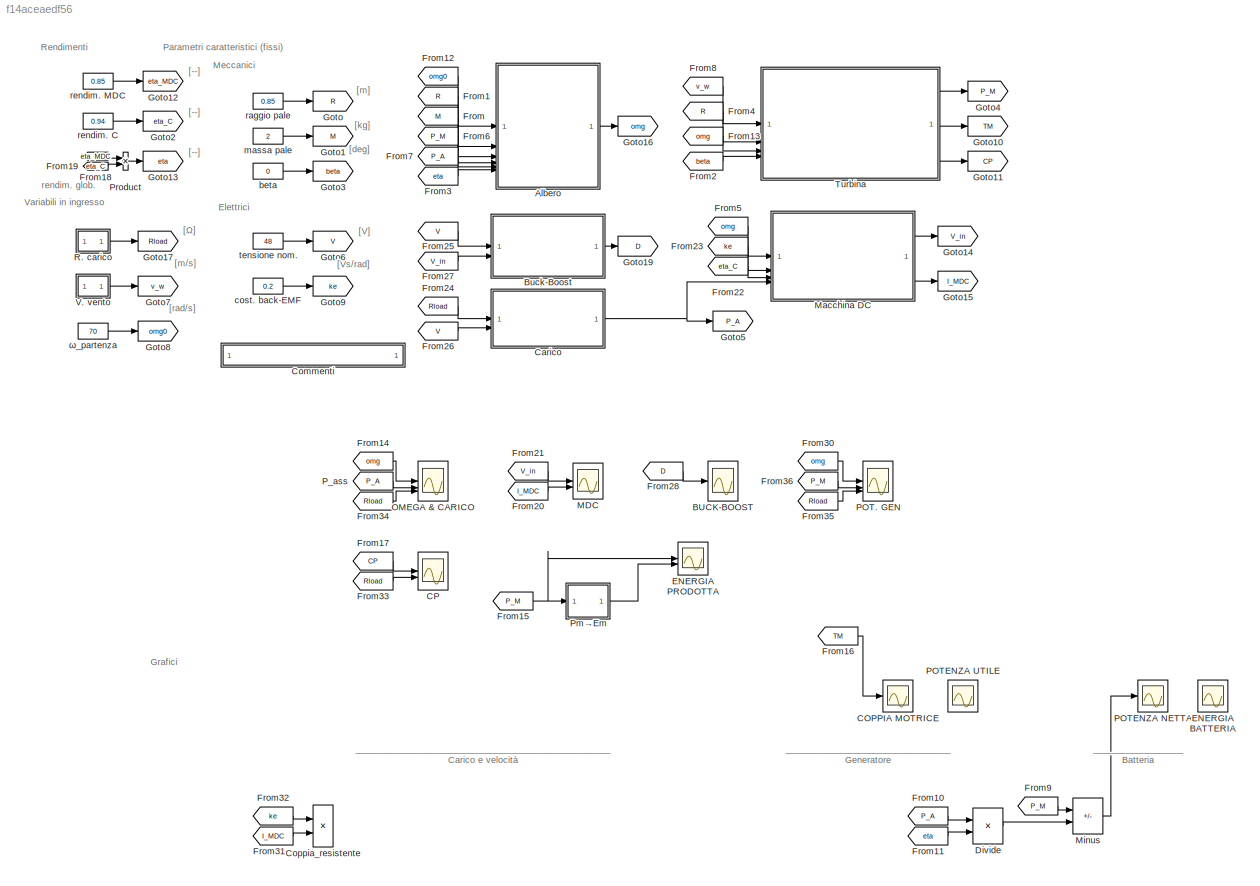
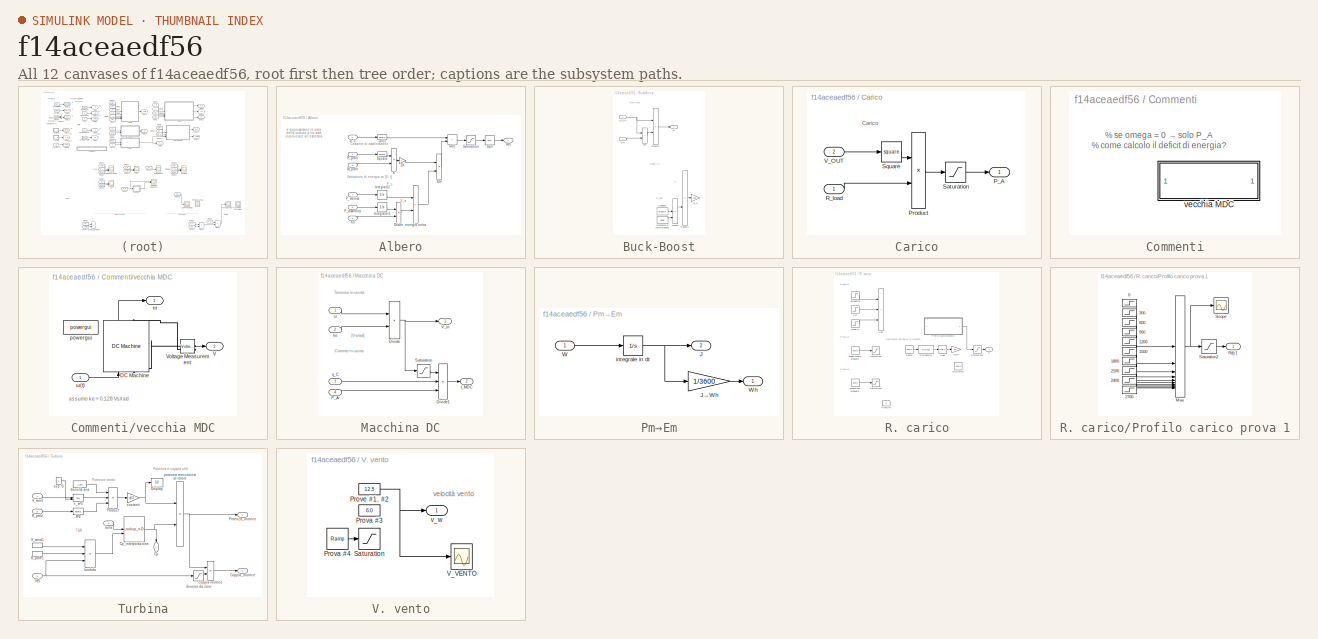
[diagram: thumbnail index - all 12 canvases of the model, root first then tree order]
MODEL slx_f14aceaedf56
KIND model
CONFIG AbsTol = auto
CONFIG EnableMultiTasking = off
CONFIG FixedStep = auto
CONFIG MaxStep = auto
CONFIG MinStep = auto
CONFIG RelTol = 1e-3
CONFIG SampleTimeConstraint = Unconstrained
CONFIG SolverName = VariableStepAuto
CONFIG StartTime = 0.0
CONFIG StopTime = 3000
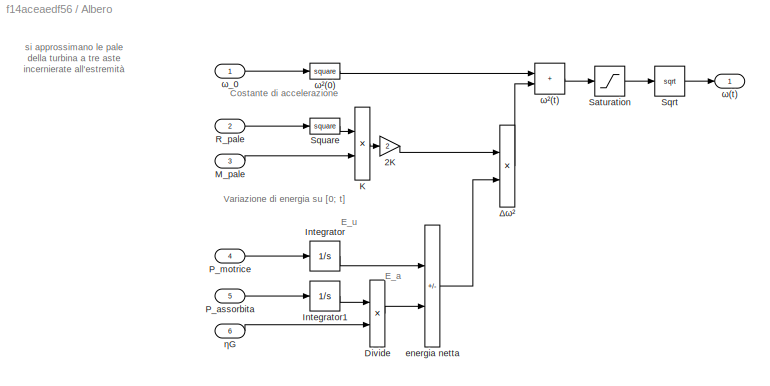
BLOCK [SubSystem] Albero
  NameLocation = top
BLOCK [Gain] Albero/2K
  Gain = 2
BLOCK [Product] Albero/Divide
  Inputs = */
BLOCK [Integrator] Albero/Integrator
BLOCK [Integrator] Albero/Integrator1
BLOCK [Product] Albero/K
  Inputs = //
  NameLocation = left
BLOCK [Inport] Albero/M_pale
  Port = 3
  Unit = kg
BLOCK [Inport] Albero/P_assorbita
  Port = 5
  Unit = W
BLOCK [Inport] Albero/P_motrice
  Port = 4
  Unit = W
BLOCK [Inport] Albero/R_pale
  Port = 2
  Unit = m
BLOCK [Saturate] Albero/Saturation
  LowerLimit = 0
  UpperLimit = 10e6
BLOCK [Sqrt] Albero/Sqrt
BLOCK [Math] Albero/Square
  Operator = square
BLOCK [Sum] Albero/energia netta
  IconShape = rectangular
  Inputs = +-
BLOCK [Product] Albero/Δω²
BLOCK [Inport] Albero/ηG
  Port = 6
  Unit = 1
BLOCK [Outport] Albero/ω(t)
  Unit = rad/s
BLOCK [Inport] Albero/ω_0
  Unit = rad/s
BLOCK [Math] Albero/ω²(0)
  NameLocation = top
  Operator = square
BLOCK [Sum] Albero/ω²(t)
  IconShape = rectangular
BLOCK [Scope] BUCK-BOOST
  Floating = off
  NumInputPorts = 2
  ScopeSpecificationString = Simulink.scopes.TimeScopeBlockCfg('CurrentConfiguration', extmgr.ConfigurationSet(extmgr.Configuration('Core','General UI',true,'FigureColor',[1 1 1]),extmgr.Configuration('Core','Source UI',true),extmgr.Configuration('Sources','WiredSimulink',true,'DataLoggingVariableName','ScopeData1'),extmgr.Configuration('Visuals','Time Domain',true,'SerializedDisplays',{struct('MinYLimReal','-0.05','MaxYLimRe...<+3370ch>
BLOCK [SubSystem] Buck-Boost
  NameLocation = top
BLOCK [Sum] Buck-Boost/Add
  IconShape = rectangular
BLOCK [Constant] Buck-Boost/Capacità
  NameLocation = left
  Value = 8*10e-6
BLOCK [Outport] Buck-Boost/D
  NameLocation = right
  Unit = 1
BLOCK [Constant] Buck-Boost/Frequenza di commutazione
  NameLocation = left
  Value = 10e5
BLOCK [Product] Buck-Boost/Product
  Commented = on
  Inputs = 3
BLOCK [Product] Buck-Boost/Product1
  Commented = on
  Inputs = */
BLOCK [Product] Buck-Boost/Product2
  Inputs = */
BLOCK [Inport] Buck-Boost/V_IN
  NameLocation = left
  Port = 2
  Unit = V
BLOCK [Inport] Buck-Boost/V_OUT
  NameLocation = left
  Unit = V
BLOCK [Gain] Buck-Boost/in_%
  Commented = on
  Gain = 100
BLOCK [Scope] COPPIA MOTRICE
  Floating = off
  NumInputPorts = 1
  ScopeSpecificationString = Simulink.scopes.TimeScopeBlockCfg('CurrentConfiguration', extmgr.ConfigurationSet(extmgr.Configuration('Core','General UI',true,'FigureColor',[1 1 1]),extmgr.Configuration('Core','Source UI',true),extmgr.Configuration('Sources','WiredSimulink',true,'DataLoggingVariableName','ScopeData3'),extmgr.Configuration('Visuals','Time Domain',true,'SerializedDisplays',{struct('MinYLimReal','-1.22036','MaxYLi...<+1816ch>
BLOCK [Scope] CP
  Floating = off
  NumInputPorts = 2
  ScopeSpecificationString = Simulink.scopes.TimeScopeBlockCfg('CurrentConfiguration', extmgr.ConfigurationSet(extmgr.Configuration('Core','General UI',true,'FigureColor',[1 1 1]),extmgr.Configuration('Core','Source UI',true),extmgr.Configuration('Sources','WiredSimulink',true,'DataLoggingVariableName','ScopeData1'),extmgr.Configuration('Visuals','Time Domain',true,'SerializedDisplays',{struct('MinYLimReal','-0.05','MaxYLimRe...<+2373ch>
BLOCK [SubSystem] Carico
BLOCK [Outport] Carico/P_A
  NameLocation = right
  Unit = W
BLOCK [Product] Carico/Product
  Inputs = */
BLOCK [Inport] Carico/R_load
  NameLocation = left
  Unit = Ω
BLOCK [Saturate] Carico/Saturation
  LowerLimit = 0.1
  UpperLimit = 10e6
BLOCK [Math] Carico/Square
  Operator = square
BLOCK [Inport] Carico/V_OUT
  NameLocation = left
  Port = 2
  Unit = V
BLOCK [SubSystem] Commenti
  NameLocation = top
BLOCK [SubSystem] Commenti/vecchia MDC
  Commented = on
BLOCK [Reference] Commenti/vecchia MDC/DC Machine  REF=spsDCMachineLib/DC Machine
  LibrarySourceBlock = sps_lib/Electrical Machines/DC Machine
  NameLocation = left
  SourceBlock = spsDCMachineLib/DC Machine
  SourceType = DC machine
BLOCK [Outport] Commenti/vecchia MDC/V
  Port = 2
  Unit = V
BLOCK [Reference] Commenti/vecchia MDC/Voltage Measurement  REF=spsVoltageMeasurementLib/Voltage Measurement
  LibrarySourceBlock = sps_lib/Sensors and Measurements/Voltage Measurement
  SourceBlock = spsVoltageMeasurementLib/Voltage Measurement
  SourceType = Voltage Measurement
  UserDataPersistent = on
BLOCK [Outport] Commenti/vecchia MDC/m
BLOCK [Reference] Commenti/vecchia MDC/powergui  REF=sps_lib/powergui
  LibrarySourceBlock = sps_lib/powergui
  Priority = 1
  SourceBlock = sps_lib/powergui
  SourceType = PSB option menu block
BLOCK [Inport] Commenti/vecchia MDC/ω(t)
BLOCK [Product] Coppia_resistente
BLOCK [Product] Divide
  Inputs = */
BLOCK [Scope] ENERGIA BATTERIA
  Floating = off
  NumInputPorts = 1
  ScopeSpecificationString = Simulink.scopes.TimeScopeBlockCfg('CurrentConfiguration', extmgr.ConfigurationSet(extmgr.Configuration('Core','General UI',true,'FigureColor',[1 1 1]),extmgr.Configuration('Core','Source UI',true),extmgr.Configuration('Sources','WiredSimulink',true,'DataLoggingVariableName','ScopeData2'),extmgr.Configuration('Visuals','Time Domain',true,'SerializedDisplays',{struct('MinYLimReal','-6.66941','MaxYLi...<+1824ch>
BLOCK [Scope] ENERGIA PRODOTTA
  Floating = off
  NumInputPorts = 2
  ScopeSpecificationString = Simulink.scopes.TimeScopeBlockCfg('CurrentConfiguration', extmgr.ConfigurationSet(extmgr.Configuration('Core','General UI',true,'FigureColor',[1 1 1]),extmgr.Configuration('Core','Source UI',true),extmgr.Configuration('Sources','WiredSimulink',true,'DataLoggingVariableName','ScopeData4'),extmgr.Configuration('Visuals','Time Domain',true,'SerializedDisplays',{struct('MinYLimReal','-50','MaxYLimReal...<+1907ch>
BLOCK [From] From
  GotoTag = M
BLOCK [From] From1
  GotoTag = R
BLOCK [From] From10
  GotoTag = P_A
BLOCK [From] From11
  GotoTag = eta
BLOCK [From] From12
  GotoTag = omg0
BLOCK [From] From13
  GotoTag = omg
BLOCK [From] From14
  GotoTag = omg
  NameLocation = left
BLOCK [From] From15
  GotoTag = P_M
BLOCK [From] From16
  GotoTag = TM
BLOCK [From] From17
  GotoTag = CP
BLOCK [From] From18
  GotoTag = eta_MDC
BLOCK [From] From19
  GotoTag = eta_C
BLOCK [From] From2
  GotoTag = beta
BLOCK [From] From20
  GotoTag = I_MDC
  NameLocation = left
BLOCK [From] From21
  GotoTag = V_in
BLOCK [From] From22
  GotoTag = eta_C
BLOCK [From] From23
  GotoTag = ke
BLOCK [From] From24
  GotoTag = Rload
BLOCK [From] From25
  GotoTag = V
BLOCK [From] From26
  GotoTag = V
BLOCK [From] From27
  GotoTag = V_in
BLOCK [From] From28
  GotoTag = D
BLOCK [From] From3
  GotoTag = eta
BLOCK [From] From30
  GotoTag = omg
  NameLocation = left
BLOCK [From] From31
  GotoTag = I_MDC
BLOCK [From] From32
  GotoTag = ke
BLOCK [From] From33
  GotoTag = Rload
BLOCK [From] From34
  GotoTag = Rload
BLOCK [From] From35
  GotoTag = Rload
BLOCK [From] From36
  GotoTag = P_M
BLOCK [From] From4
  GotoTag = R
BLOCK [From] From5
  GotoTag = omg
BLOCK [From] From6
  GotoTag = P_M
BLOCK [From] From7
  GotoTag = P_A
BLOCK [From] From8
  GotoTag = v_w
BLOCK [From] From9
  GotoTag = P_M
BLOCK [Goto] Goto
  GotoTag = R
BLOCK [Goto] Goto1
  GotoTag = M
BLOCK [Goto] Goto10
  GotoTag = TM
BLOCK [Goto] Goto11
  GotoTag = CP
BLOCK [Goto] Goto12
  GotoTag = eta_MDC
BLOCK [Goto] Goto13
  GotoTag = eta
BLOCK [Goto] Goto14
  GotoTag = V_in
BLOCK [Goto] Goto15
  GotoTag = I_MDC
BLOCK [Goto] Goto16
  GotoTag = omg
BLOCK [Goto] Goto17
  GotoTag = Rload
BLOCK [Goto] Goto19
  GotoTag = D
BLOCK [Goto] Goto2
  GotoTag = eta_C
BLOCK [Goto] Goto3
  GotoTag = beta
BLOCK [Goto] Goto4
  GotoTag = P_M
BLOCK [Goto] Goto5
  GotoTag = P_A
BLOCK [Goto] Goto6
  GotoTag = V
BLOCK [Goto] Goto7
  GotoTag = v_w
BLOCK [Goto] Goto8
  GotoTag = omg0
BLOCK [Goto] Goto9
  GotoTag = ke
BLOCK [Scope] MDC
  Floating = off
  NumInputPorts = 2
  ScopeSpecificationString = Simulink.scopes.TimeScopeBlockCfg('CurrentConfiguration', extmgr.ConfigurationSet(extmgr.Configuration('Core','General UI',true,'FigureColor',[1 1 1]),extmgr.Configuration('Core','Source UI',true),extmgr.Configuration('Sources','WiredSimulink',true,'DataLoggingVariableName','ScopeData1'),extmgr.Configuration('Visuals','Time Domain',true,'SerializedDisplays',{struct('MinYLimReal','-5','MaxYLimReal'...<+2292ch>
BLOCK [SubSystem] Macchina DC
  NameLocation = top
BLOCK [Product] Macchina DC/Divide
BLOCK [Product] Macchina DC/Divide1
  Inputs = //*
BLOCK [Outport] Macchina DC/I_MDC
  NameLocation = right
  Port = 2
  Unit = A
BLOCK [Inport] Macchina DC/P_A
  NameLocation = left
  Port = 4
  Unit = W
BLOCK [Saturate] Macchina DC/Saturation
  LowerLimit = 1
  UpperLimit = 1000
BLOCK [Outport] Macchina DC/V_in
  NameLocation = right
  Unit = V
BLOCK [Inport] Macchina DC/ke
  NameLocation = left
  Port = 2
  Unit = W
BLOCK [Inport] Macchina DC/η_C
  NameLocation = left
  Port = 3
BLOCK [Inport] Macchina DC/ω
  NameLocation = left
  Unit = rad/s
BLOCK [Sum] Minus
  IconShape = rectangular
  Inputs = +-
BLOCK [Scope] OMEGA & CARICO
  Floating = off
  NumInputPorts = 3
  ScopeSpecificationString = Simulink.scopes.TimeScopeBlockCfg('CurrentConfiguration', extmgr.ConfigurationSet(extmgr.Configuration('Core','General UI',true,'FigureColor',[1 1 1]),extmgr.Configuration('Core','Source UI',true),extmgr.Configuration('Sources','WiredSimulink',true,'DataLoggingVariableName','ScopeData1'),extmgr.Configuration('Visuals','Time Domain',true,'TimeAxisLabels','All','SerializedDisplays',{struct('MinYLimR...<+3260ch>
BLOCK [Scope] POT. GEN
  Floating = off
  NumInputPorts = 3
  ScopeSpecificationString = Simulink.scopes.TimeScopeBlockCfg('CurrentConfiguration', extmgr.ConfigurationSet(extmgr.Configuration('Core','General UI',true,'FigureColor',[1 1 1]),extmgr.Configuration('Core','Source UI',true),extmgr.Configuration('Sources','WiredSimulink',true,'DataLoggingVariableName','ScopeData1'),extmgr.Configuration('Visuals','Time Domain',true,'SerializedDisplays',{struct('MinYLimReal','-35.69102','MaxYL...<+3188ch>
BLOCK [Scope] POTENZA NETTA
  Floating = off
  NumInputPorts = 1
  ScopeSpecificationString = Simulink.scopes.TimeScopeBlockCfg('CurrentConfiguration', extmgr.ConfigurationSet(extmgr.Configuration('Core','General UI',true,'FigureColor',[1 1 1]),extmgr.Configuration('Core','Source UI',true),extmgr.Configuration('Sources','WiredSimulink',true,'DataLoggingVariableName','ScopeData1'),extmgr.Configuration('Visuals','Time Domain',true,'SerializedDisplays',{struct('MinYLimReal','-251.2003','MaxYL...<+1878ch>
BLOCK [Scope] POTENZA UTILE
  Floating = off
  NumInputPorts = 1
  ScopeSpecificationString = Simulink.scopes.TimeScopeBlockCfg('CurrentConfiguration', extmgr.ConfigurationSet(extmgr.Configuration('Core','General UI',true,'FigureColor',[1 1 1]),extmgr.Configuration('Core','Source UI',true),extmgr.Configuration('Sources','WiredSimulink',true,'DataLoggingVariableName','ScopeData2'),extmgr.Configuration('Visuals','Time Domain',true,'SerializedDisplays',{struct('MinYLimReal','-251.2003','MaxYL...<+1866ch>
BLOCK [From] P_ass
  GotoTag = P_A
  NameLocation = left
BLOCK [SubSystem] Pm→Em
  PortSchema = {"entries":[{"content":{"sides":[{"content":{"connectorIds":["In1"]},"type":"ConnectorPlacement.EquallySpacedRectSide","uuid":"bcdc19f3-31c9-4960-9b75-9687f3be57dc"},{"content":{"connectorIds":["Out1"],"side":"RIGHT"},"type":"ConnectorPlacement.EquallySpacedRectSide","uuid":"6f4d4c58-42a6-48b0-9f12-2aa1dcddf363"},{"content":{"connectorIds":["Out2"],"side":"TOP"},"type":"ConnectorPlacement.EquallyS...<+372ch>
BLOCK [Outport] Pm→Em/J
  Port = 2
  Unit = J
BLOCK [Gain] Pm→Em/J→Wh
  Gain = 1/3600
BLOCK [Inport] Pm→Em/W
BLOCK [Outport] Pm→Em/Wh
  Unit = W*h
BLOCK [Integrator] Pm→Em/integrale in dt
BLOCK [Product] Product
BLOCK [SubSystem] R. carico
BLOCK [Sum] R. carico/Add
  Commented = on
  IconShape = rectangular
  Inputs = +++
BLOCK [Gain] R. carico/Gain
  Gain = 50
BLOCK [Step] R. carico/PC
  After = 90
  Commented = on
  SampleTime = 0
  Time = 1200
BLOCK [Polyval] R. carico/Polynomial
  Coefs = [10e-4 0 0]
BLOCK [Math] R. carico/Pow
  Operator = reciprocal
  RndMeth = Zero
  SignedPower = on
BLOCK [SubSystem] R. carico/Profilo carico prova 1
BLOCK [Step] R. carico/Profilo carico prova 1/0
  After = 0
  Before = 100
  NameLocation = left
  SampleTime = 0
  Time = 300
BLOCK [Step] R. carico/Profilo carico prova 1/1200
  After = 0
  Before = 2.8
  NameLocation = left
  SampleTime = 0
  Time = 1500
BLOCK [Step] R. carico/Profilo carico prova 1/1500
  After = 0
  Before = 2.6
  NameLocation = left
  SampleTime = 0
  Time = 1800
BLOCK [Step] R. carico/Profilo carico prova 1/1800
  After = 0
  Before = 2.4
  NameLocation = left
  SampleTime = 0
  Time = 2100
BLOCK [Step] R. carico/Profilo carico prova 1/2100
  After = 0
  Before = 2.2
  NameLocation = left
  SampleTime = 0
  Time = 2400
BLOCK [Step] R. carico/Profilo carico prova 1/2400
  After = 0
  Before = 2
  NameLocation = left
  SampleTime = 0
  Time = 2700
BLOCK [Step] R. carico/Profilo carico prova 1/2700
  After = 5
  NameLocation = left
  SampleTime = 0
  Time = 2700
BLOCK [Step] R. carico/Profilo carico prova 1/300
  After = 0
  Before = 10
  NameLocation = left
  SampleTime = 0
  Time = 600
BLOCK [Step] R. carico/Profilo carico prova 1/600
  After = 0
  Before = 5
  NameLocation = left
  SampleTime = 0
  Time = 900
BLOCK [Step] R. carico/Profilo carico prova 1/900
  After = 0
  Before = 3
  NameLocation = left
  SampleTime = 0
  Time = 1200
BLOCK [MinMax] R. carico/Profilo carico prova 1/Max
  Function = max
  Inputs = 10
BLOCK [Outport] R. carico/Profilo carico prova 1/R(t) 1
BLOCK [Saturate] R. carico/Profilo carico prova 1/Saturation2
  LowerLimit = 0.15
  UpperLimit = 10e6
BLOCK [Scope] R. carico/Profilo carico prova 1/Scope
  Floating = off
  NumInputPorts = 1
  ScopeSpecificationString = Simulink.scopes.TimeScopeBlockCfg('CurrentConfiguration', extmgr.ConfigurationSet(extmgr.Configuration('Core','General UI',true),extmgr.Configuration('Core','Source UI',true),extmgr.Configuration('Sources','WiredSimulink',true,'DataLoggingVariableName','ScopeData1'),extmgr.Configuration('Visuals','Time Domain',true,'SerializedDisplays',{struct('MinYLimReal','-12.5','MaxYLimReal','112.5','YLabelRea...<+1465ch>
BLOCK [Constant] R. carico/Prova #4
  Commented = on
  NameLocation = left
  Value = 0
BLOCK [Outport] R. carico/R
BLOCK [Reference] R. carico/Ramp  REF=simulink/Sources/Ramp
  SourceBlock = simulink/Sources/Ramp
  SourceType = Ramp
BLOCK [Saturate] R. carico/Saturation
  Commented = on
  LowerLimit = 0
  UpperLimit = 1000
BLOCK [Saturate] R. carico/Saturation1
  Commented = on
  LowerLimit = 0
  UpperLimit = 200
BLOCK [Saturate] R. carico/Saturation2
  LowerLimit = 0.15
  UpperLimit = 10e6
BLOCK [Reference] R. carico/accensione graduale  REF=simulink/Sources/Ramp
  Commented = on
  SourceBlock = simulink/Sources/Ramp
  SourceType = Ramp
BLOCK [Reference] R. carico/altra prova  REF=simulink/Sources/Ramp
  NameLocation = left
  SourceBlock = simulink/Sources/Ramp
  SourceType = Ramp
BLOCK [Step] R. carico/fornello
  After = 900
  Commented = on
  SampleTime = 0
  Time = 1500
BLOCK [Step] R. carico/lampadina
  After = 10
  Commented = on
  SampleTime = 0
  Time = 900
BLOCK [Reference] R. carico/spegnimento graduale  REF=simulink/Sources/Ramp
  Commented = on
  SourceBlock = simulink/Sources/Ramp
  SourceType = Ramp
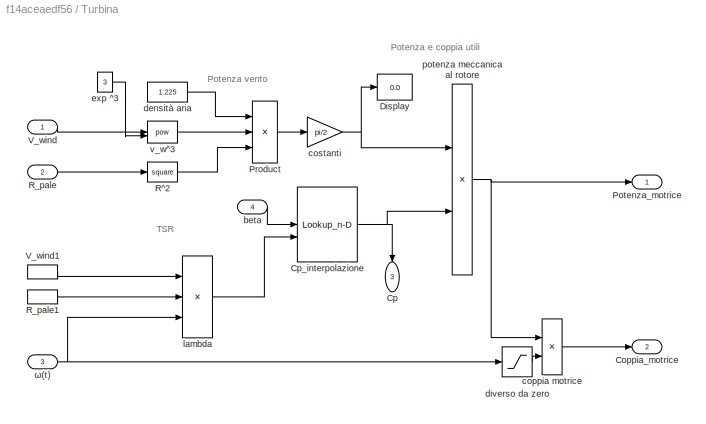
BLOCK [SubSystem] Turbina
  NameLocation = top
BLOCK [Outport] Turbina/Coppia_motrice
  Port = 2
  Unit = N*m
BLOCK [Outport] Turbina/Cp
  Port = 3
  Unit = 1
BLOCK [Lookup_n-D] Turbina/Cp_interpolazione
  BreakpointsForDimension1 = pitch
  BreakpointsForDimension2 = TSR
  InputPortMap = u0,u1
  InternalRulePriority = Speed
  InterpMethod = Cubic spline
  RndMeth = Simplest
  Table = cp
BLOCK [Display] Turbina/Display
  Decimation = 1
BLOCK [Outport] Turbina/Potenza_motrice
  Unit = W
BLOCK [Product] Turbina/Product
  Inputs = ***
BLOCK [Math] Turbina/R^2
  Operator = square
BLOCK [Inport] Turbina/R_pale
  NameLocation = left
  Port = 2
  Unit = m
BLOCK [InportShadow] Turbina/R_pale1
  NameLocation = left
  Port = 2
  Unit = m
BLOCK [Inport] Turbina/V_wind
  NameLocation = left
  Unit = m/s
BLOCK [InportShadow] Turbina/V_wind1
  NameLocation = left
  Unit = m/s
BLOCK [Inport] Turbina/beta
  Port = 4
  Unit = deg
BLOCK [Product] Turbina/coppia motrice
  Inputs = */
  NameLocation = top
BLOCK [Gain] Turbina/costanti
  Gain = pi/2
BLOCK [Constant] Turbina/densità aria
  NameLocation = top
  Value = 1.225
BLOCK [Saturate] Turbina/diverso da zero
  LowerLimit = 0.1
  UpperLimit = 10e3
BLOCK [Constant] Turbina/exp ^3
  NameLocation = top
  Value = 3
BLOCK [Product] Turbina/lambda
  Inputs = /**
  NameLocation = right
BLOCK [Product] Turbina/potenza meccanica al rotore
BLOCK [Math] Turbina/v_w^3
  Operator = pow
BLOCK [Inport] Turbina/ω(t)
  NameLocation = left
  Port = 3
  Unit = rad/s
BLOCK [SubSystem] V. vento
BLOCK [Constant] V. vento/Prova #3
  NameLocation = left
  Value = 6.0
BLOCK [Reference] V. vento/Prova #4  REF=simulink/Sources/Ramp
  NameLocation = left
  SourceBlock = simulink/Sources/Ramp
  SourceType = Ramp
BLOCK [Constant] V. vento/Prove #1, #2
  NameLocation = left
  Value = 12.5
BLOCK [Saturate] V. vento/Saturation
  LowerLimit = 10e-2
  UpperLimit = 20
BLOCK [Scope] V. vento/V_VENTO
  Floating = off
  NumInputPorts = 1
  ScopeSpecificationString = Simulink.scopes.TimeScopeBlockCfg('CurrentConfiguration', extmgr.ConfigurationSet(extmgr.Configuration('Core','General UI',true,'FigureColor',[1 1 1]),extmgr.Configuration('Core','Source UI',true),extmgr.Configuration('Sources','WiredSimulink',true,'DataLoggingVariableName','ScopeData2'),extmgr.Configuration('Visuals','Time Domain',true,'SerializedDisplays',{struct('MinYLimReal','-0.25','MaxYLimRe...<+1867ch>
BLOCK [Outport] V. vento/v_w
BLOCK [Constant] beta
  Value = 0
BLOCK [Constant] cost. back-EMF
  Value = 0.2
BLOCK [Constant] massa pale
  Value = 2
BLOCK [Constant] raggio pale
  Value = 0.85
BLOCK [Constant] rendim. C
  Value = 0.94
BLOCK [Constant] rendim. MDC
  Value = 0.85
BLOCK [Constant] tensione nom.
  Value = 48
BLOCK [Constant] ω_partenza
  Value = 70
ANNOTATION (root): [ Ω ]
ANNOTATION (root): [V]
ANNOTATION (root): [Vs/rad]
ANNOTATION (root): [deg]
ANNOTATION (root): [m/s]
ANNOTATION (root): [m]
ANNOTATION (root): [rad/s]
ANNOTATION (root): [--]
ANNOTATION (root): [kg]
ANNOTATION (root): __________________ Batteria
ANNOTATION (root): _________________________________ Generatore
ANNOTATION (root): ___________________________________________________ Carico e velocità
ANNOTATION (root): Elettrici
ANNOTATION (root): Grafici
ANNOTATION (root): Meccanici
ANNOTATION (root): Parametri caratteristici (fissi)
ANNOTATION (root): Rendimenti
ANNOTATION (root): Variabili in ingresso
ANNOTATION (root): rendim. glob.
ANNOTATION Albero: si approssimano le pale della turbina a tre aste incernierate all'estremità
ANNOTATION Albero: Costante di accelerazione
ANNOTATION Albero: E_a
ANNOTATION Albero: E_u
ANNOTATION Albero: Variazione di energia su [0; t]
ANNOTATION Buck-Boost: D
ANNOTATION Buck-Boost: Duty cycle
ANNOTATION Buck-Boost: R_load
ANNOTATION Buck-Boost: Ripple (%)
ANNOTATION Carico: Carico
ANNOTATION Commenti: % se omega = 0 → solo P_A % come calcolo il deficit di energia?
ANNOTATION Commenti/vecchia MDC: assumo ke = 0.128 Vs/rad
ANNOTATION Macchina DC: Corrente in uscita
ANNOTATION Macchina DC: Tensione in uscita
ANNOTATION Macchina DC: [Vs/rad]
ANNOTATION R. carico: Prova #1
ANNOTATION R. carico: Prova #2
ANNOTATION R. carico: Prova #3
ANNOTATION R. carico: Resistenza (variabile in ingresso)
ANNOTATION Turbina: Potenza e coppia utili
ANNOTATION Turbina: Potenza vento
ANNOTATION Turbina: TSR
ANNOTATION V. vento: velocità vento
LINE Albero/2K:1 -> Albero/Δω²:1
LINE Albero/Divide:1 -> Albero/energia netta:2
LINE Albero/Integrator1:1 -> Albero/Divide:1
LINE Albero/Integrator:1 -> Albero/energia netta:1
LINE Albero/K:1 -> Albero/2K:1
LINE Albero/M_pale:1 -> Albero/K:2
LINE Albero/P_assorbita:1 -> Albero/Integrator1:1
LINE Albero/P_motrice:1 -> Albero/Integrator:1
LINE Albero/R_pale:1 -> Albero/Square:1
LINE Albero/Saturation:1 -> Albero/Sqrt:1
LINE Albero/Sqrt:1 -> Albero/ω(t):1
LINE Albero/Square:1 -> Albero/K:1
LINE Albero/energia netta:1 -> Albero/Δω²:2
LINE Albero/Δω²:1 -> Albero/ω²(t):2
LINE Albero/ηG:1 -> Albero/Divide:2
LINE Albero/ω_0:1 -> Albero/ω²(0):1
LINE Albero/ω²(0):1 -> Albero/ω²(t):1
LINE Albero/ω²(t):1 -> Albero/Saturation:1
LINE Albero:1 -> Goto16:1
LINE Buck-Boost/Add:1 -> Buck-Boost/Product2:2
LINE Buck-Boost/Capacità:1 -> Buck-Boost/Product:2
LINE Buck-Boost/Frequenza di commutazione:1 -> Buck-Boost/Product:3
LINE Buck-Boost/Product1:1 -> Buck-Boost/in_%:1
LINE Buck-Boost/Product2:1 -> Buck-Boost/D:1
LINE Buck-Boost/Product:1 -> Buck-Boost/Product1:2
LINE Buck-Boost/V_IN:1 -> Buck-Boost/Add:2
NET Buck-Boost/V_OUT:1 -> Buck-Boost/Add:1, Buck-Boost/Product2:1
LINE Buck-Boost:1 -> Goto19:1
LINE Carico/Product:1 -> Carico/Saturation:1
LINE Carico/R_load:1 -> Carico/Product:2
LINE Carico/Saturation:1 -> Carico/P_A:1
LINE Carico/Square:1 -> Carico/Product:1
LINE Carico/V_OUT:1 -> Carico/Square:1
NET Carico:1 -> Goto5:1, Macchina DC:4
LINE Commenti/vecchia MDC/DC Machine:1 -> Commenti/vecchia MDC/m:1
LINE Commenti/vecchia MDC/Voltage Measurement:1 -> Commenti/vecchia MDC/V:1
LINE Commenti/vecchia MDC/ω(t):1 -> Commenti/vecchia MDC/DC Machine:1
LINE Divide:1 -> Minus:2
LINE From10:1 -> Divide:1
LINE From11:1 -> Divide:2
LINE From12:1 -> Albero:1
LINE From13:1 -> Turbina:3
LINE From14:1 -> OMEGA & CARICO:1
NET From15:1 -> ENERGIA PRODOTTA:1, Pm→Em:1
LINE From16:1 -> COPPIA MOTRICE:1
LINE From17:1 -> CP:1
LINE From18:1 -> Product:1
LINE From19:1 -> Product:2
LINE From1:1 -> Albero:2
LINE From20:1 -> MDC:2
LINE From21:1 -> MDC:1
LINE From22:1 -> Macchina DC:3
LINE From23:1 -> Macchina DC:2
LINE From24:1 -> Carico:1
LINE From25:1 -> Buck-Boost:1
LINE From26:1 -> Carico:2
LINE From27:1 -> Buck-Boost:2
LINE From28:1 -> BUCK-BOOST:1
LINE From2:1 -> Turbina:4
LINE From30:1 -> POT. GEN:1
LINE From31:1 -> Coppia_resistente:2
LINE From32:1 -> Coppia_resistente:1
LINE From33:1 -> CP:2
LINE From34:1 -> OMEGA & CARICO:3
LINE From35:1 -> POT. GEN:3
LINE From36:1 -> POT. GEN:2
LINE From3:1 -> Albero:6
LINE From4:1 -> Turbina:2
LINE From5:1 -> Macchina DC:1
LINE From6:1 -> Albero:4
LINE From7:1 -> Albero:5
LINE From8:1 -> Turbina:1
LINE From9:1 -> Minus:1
LINE From:1 -> Albero:3
LINE Macchina DC/Divide1:1 -> Macchina DC/I_MDC:1
NET Macchina DC/Divide:1 -> Macchina DC/Saturation:1, Macchina DC/V_in:1
LINE Macchina DC/P_A:1 -> Macchina DC/Divide1:3
LINE Macchina DC/Saturation:1 -> Macchina DC/Divide1:1
LINE Macchina DC/ke:1 -> Macchina DC/Divide:2
LINE Macchina DC/η_C:1 -> Macchina DC/Divide1:2
LINE Macchina DC/ω:1 -> Macchina DC/Divide:1
LINE Macchina DC:1 -> Goto14:1
LINE Macchina DC:2 -> Goto15:1
LINE Minus:1 -> POTENZA NETTA:1
LINE P_ass:1 -> OMEGA & CARICO:2
LINE Pm→Em/J→Wh:1 -> Pm→Em/Wh:1
LINE Pm→Em/W:1 -> Pm→Em/integrale in dt:1
NET Pm→Em/integrale in dt:1 -> Pm→Em/J:1, Pm→Em/J→Wh:1
LINE Pm→Em:1 -> ENERGIA PRODOTTA:2
LINE Product:1 -> Goto13:1
LINE R. carico/PC:1 -> R. carico/Add:2
LINE R. carico/Polynomial:1 -> R. carico/Pow:1
LINE R. carico/Pow:1 -> R. carico/Gain:1
LINE R. carico/Profilo carico prova 1/0:1 -> R. carico/Profilo carico prova 1/Max:1
LINE R. carico/Profilo carico prova 1/1200:1 -> R. carico/Profilo carico prova 1/Max:5
LINE R. carico/Profilo carico prova 1/1500:1 -> R. carico/Profilo carico prova 1/Max:6
LINE R. carico/Profilo carico prova 1/1800:1 -> R. carico/Profilo carico prova 1/Max:7
LINE R. carico/Profilo carico prova 1/2100:1 -> R. carico/Profilo carico prova 1/Max:8
LINE R. carico/Profilo carico prova 1/2400:1 -> R. carico/Profilo carico prova 1/Max:9
LINE R. carico/Profilo carico prova 1/2700:1 -> R. carico/Profilo carico prova 1/Max:10
LINE R. carico/Profilo carico prova 1/300:1 -> R. carico/Profilo carico prova 1/Max:2
LINE R. carico/Profilo carico prova 1/600:1 -> R. carico/Profilo carico prova 1/Max:3
LINE R. carico/Profilo carico prova 1/900:1 -> R. carico/Profilo carico prova 1/Max:4
NET R. carico/Profilo carico prova 1/Max:1 -> R. carico/Profilo carico prova 1/Saturation2:1, R. carico/Profilo carico prova 1/Scope:1
LINE R. carico/Profilo carico prova 1/Saturation2:1 -> R. carico/Profilo carico prova 1/R(t) 1:1
LINE R. carico/Profilo carico prova 1:1 -> R. carico/Saturation2:1
LINE R. carico/Ramp:1 -> R. carico/Polynomial:1
LINE R. carico/Saturation2:1 -> R. carico/R:1
LINE R. carico/accensione graduale:1 -> R. carico/Saturation1:1
LINE R. carico/fornello:1 -> R. carico/Add:3
LINE R. carico/lampadina:1 -> R. carico/Add:1
LINE R. carico/spegnimento graduale:1 -> R. carico/Saturation:1
LINE R. carico:1 -> Goto17:1
NET Turbina/Cp_interpolazione:1 -> Turbina/Cp:1, Turbina/potenza meccanica al rotore:2
LINE Turbina/Product:1 -> Turbina/costanti:1
LINE Turbina/R^2:1 -> Turbina/Product:3
LINE Turbina/R_pale1:1 -> Turbina/lambda:2
LINE Turbina/R_pale:1 -> Turbina/R^2:1
LINE Turbina/V_wind1:1 -> Turbina/lambda:1
LINE Turbina/V_wind:1 -> Turbina/v_w^3:1
LINE Turbina/beta:1 -> Turbina/Cp_interpolazione:1
LINE Turbina/coppia motrice:1 -> Turbina/Coppia_motrice:1
NET Turbina/costanti:1 -> Turbina/Display:1, Turbina/potenza meccanica al rotore:1
LINE Turbina/densità aria:1 -> Turbina/Product:1
LINE Turbina/diverso da zero:1 -> Turbina/coppia motrice:2
LINE Turbina/exp ^3:1 -> Turbina/v_w^3:2
LINE Turbina/lambda:1 -> Turbina/Cp_interpolazione:2
NET Turbina/potenza meccanica al rotore:1 -> Turbina/Potenza_motrice:1, Turbina/coppia motrice:1
LINE Turbina/v_w^3:1 -> Turbina/Product:2
NET Turbina/ω(t):1 -> Turbina/diverso da zero:1, Turbina/lambda:3
LINE Turbina:1 -> Goto4:1
LINE Turbina:2 -> Goto10:1
LINE Turbina:3 -> Goto11:1
LINE V. vento/Prova #4:1 -> V. vento/Saturation:1
NET V. vento/Prove #1, #2:1 -> V. vento/V_VENTO:1, V. vento/v_w:1
LINE V. vento:1 -> Goto7:1
LINE beta:1 -> Goto3:1
LINE cost. back-EMF:1 -> Goto9:1
LINE massa pale:1 -> Goto1:1
LINE raggio pale:1 -> Goto:1
LINE rendim. C:1 -> Goto2:1
LINE rendim. MDC:1 -> Goto12:1
LINE tensione nom.:1 -> Goto6:1
LINE ω_partenza:1 -> Goto8:1
PLINE Commenti/vecchia MDC/DC Machine:LConn1 -- Commenti/vecchia MDC/Voltage Measurement:LConn1
PLINE Commenti/vecchia MDC/DC Machine:RConn1 -- Commenti/vecchia MDC/Voltage Measurement:LConn2
note: NET lines group one-source signal fan-out (src -> all destinations, sorted); 1:1 wires keep LINE
